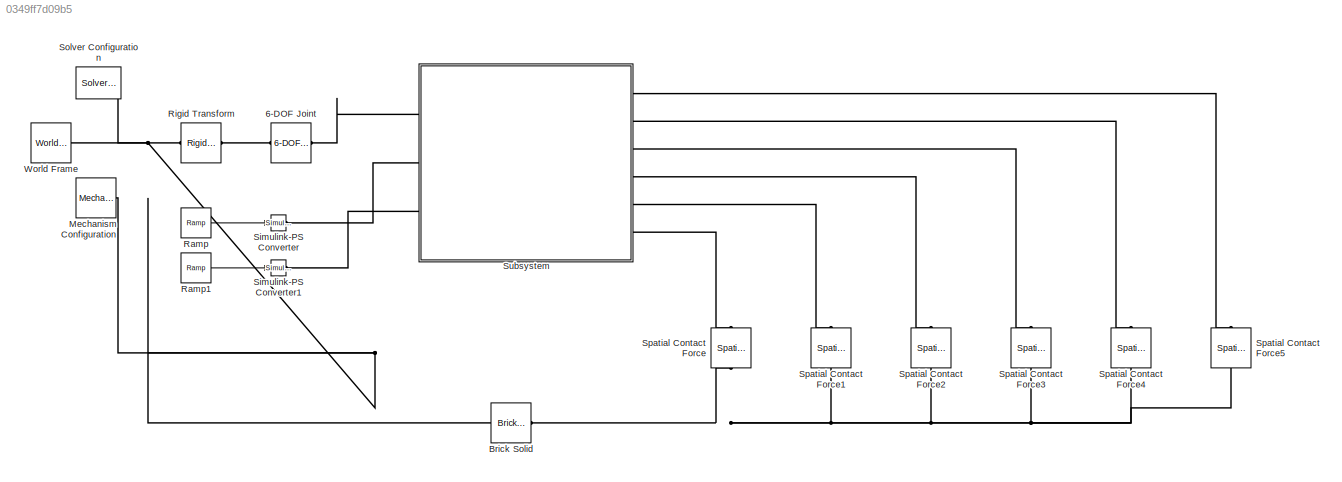
MODEL slx_0349ff7d09b5
KIND model
CONFIG AbsTol = auto
CONFIG EnableMultiTasking = off
CONFIG FixedStep = 0.001
CONFIG MaxStep = auto
CONFIG MinStep = auto
CONFIG RelTol = 1e-3
CONFIG SampleTimeConstraint = Unconstrained
CONFIG SolverName = FixedStepAuto
CONFIG StartTime = 0.0
CONFIG StopTime = 10
BLOCK [Reference] 6-DOF Joint  REF=sm_lib/Joints/6-DOF Joint
  Ports = [0, 0, 0, 0, 0, 1, 1]
  SourceBlock = sm_lib/Joints/6-DOF Joint
  SourceProductBaseCode = MS
  SourceType = 6-DOF Joint
BLOCK [Reference] Brick Solid  REF=sm_lib/Body Elements/Brick Solid
  NameLocation = top
  Ports = [0, 0, 0, 0, 0, 1, 1]
  SourceBlock = sm_lib/Body Elements/Brick Solid
  SourceProductBaseCode = MS
  SourceType = Brick Solid
BLOCK [Reference] Mechanism Configuration  REF=sm_lib/Utilities/Mechanism
Configuration
  Ports = [0, 0, 0, 0, 0, 0, 1]
  SourceBlock = sm_lib/Utilities/Mechanism\nConfiguration
  SourceProductBaseCode = MS
  SourceType = Mechanism\nConfiguration
BLOCK [Reference] Ramp  REF=simulink/Sources/Ramp
  Ports = [0, 1]
  SourceBlock = simulink/Sources/Ramp
  SourceProductBaseCode = SL
  SourceType = Ramp
BLOCK [Reference] Ramp1  REF=simulink/Sources/Ramp
  Ports = [0, 1]
  SourceBlock = simulink/Sources/Ramp
  SourceProductBaseCode = SL
  SourceType = Ramp
BLOCK [Reference] Rigid Transform  REF=sm_lib/Frames and
Transforms/Rigid
Transform
  NameLocation = top
  Ports = [0, 0, 0, 0, 0, 1, 1]
  SourceBlock = sm_lib/Frames and\nTransforms/Rigid\nTransform
  SourceProductBaseCode = MS
  SourceType = Rigid\nTransform
BLOCK [Reference] Simulink-PS Converter  REF=nesl_utility/Simulink-PS
Converter
  Ports = [1, 0, 0, 0, 0, 0, 1]
  SourceBlock = nesl_utility/Simulink-PS\nConverter
  SourceProductBaseCode = SS
  SourceType = Simulink-PS\nConverter
BLOCK [Reference] Simulink-PS Converter1  REF=nesl_utility/Simulink-PS
Converter
  Ports = [1, 0, 0, 0, 0, 0, 1]
  SourceBlock = nesl_utility/Simulink-PS\nConverter
  SourceProductBaseCode = SS
  SourceType = Simulink-PS\nConverter
BLOCK [Reference] Solver Configuration  REF=nesl_utility/Solver
Configuration
  Ports = [0, 0, 0, 0, 0, 0, 1]
  SourceBlock = nesl_utility/Solver\nConfiguration
  SourceProductBaseCode = SS
  SourceType = Solver\nConfiguration
BLOCK [Reference] Spatial Contact Force  REF=sm_lib/Forces and
Torques/Spatial
Contact Force
  NameLocation = right
  Ports = [0, 0, 0, 0, 0, 1, 1]
  SourceBlock = sm_lib/Forces and\nTorques/Spatial\nContact Force
  SourceProductBaseCode = MS
  SourceType = Spatial\nContact Force
BLOCK [Reference] Spatial Contact Force1  REF=sm_lib/Forces and
Torques/Spatial
Contact Force
  NameLocation = right
  Ports = [0, 0, 0, 0, 0, 1, 1]
  SourceBlock = sm_lib/Forces and\nTorques/Spatial\nContact Force
  SourceProductBaseCode = MS
  SourceType = Spatial\nContact Force
BLOCK [Reference] Spatial Contact Force2  REF=sm_lib/Forces and
Torques/Spatial
Contact Force
  NameLocation = right
  Ports = [0, 0, 0, 0, 0, 1, 1]
  SourceBlock = sm_lib/Forces and\nTorques/Spatial\nContact Force
  SourceProductBaseCode = MS
  SourceType = Spatial\nContact Force
BLOCK [Reference] Spatial Contact Force3  REF=sm_lib/Forces and
Torques/Spatial
Contact Force
  NameLocation = right
  Ports = [0, 0, 0, 0, 0, 1, 1]
  SourceBlock = sm_lib/Forces and\nTorques/Spatial\nContact Force
  SourceProductBaseCode = MS
  SourceType = Spatial\nContact Force
BLOCK [Reference] Spatial Contact Force4  REF=sm_lib/Forces and
Torques/Spatial
Contact Force
  NameLocation = right
  Ports = [0, 0, 0, 0, 0, 1, 1]
  SourceBlock = sm_lib/Forces and\nTorques/Spatial\nContact Force
  SourceProductBaseCode = MS
  SourceType = Spatial\nContact Force
BLOCK [Reference] Spatial Contact Force5  REF=sm_lib/Forces and
Torques/Spatial
Contact Force
  NameLocation = right
  Ports = [0, 0, 0, 0, 0, 1, 1]
  SourceBlock = sm_lib/Forces and\nTorques/Spatial\nContact Force
  SourceProductBaseCode = MS
  SourceType = Spatial\nContact Force
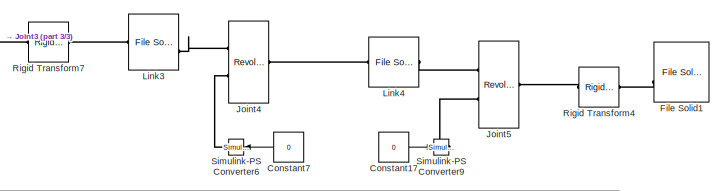
[diagram: Subsystem - part 1/3, top right region]
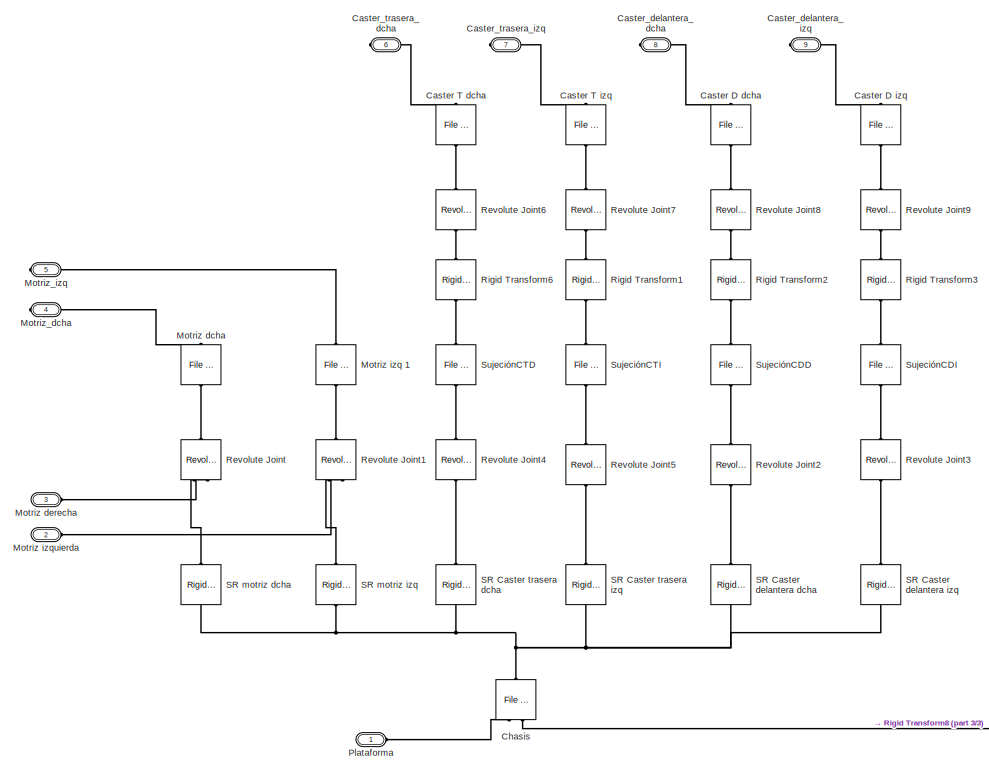
[diagram: Subsystem - part 2/3, left side, full height]
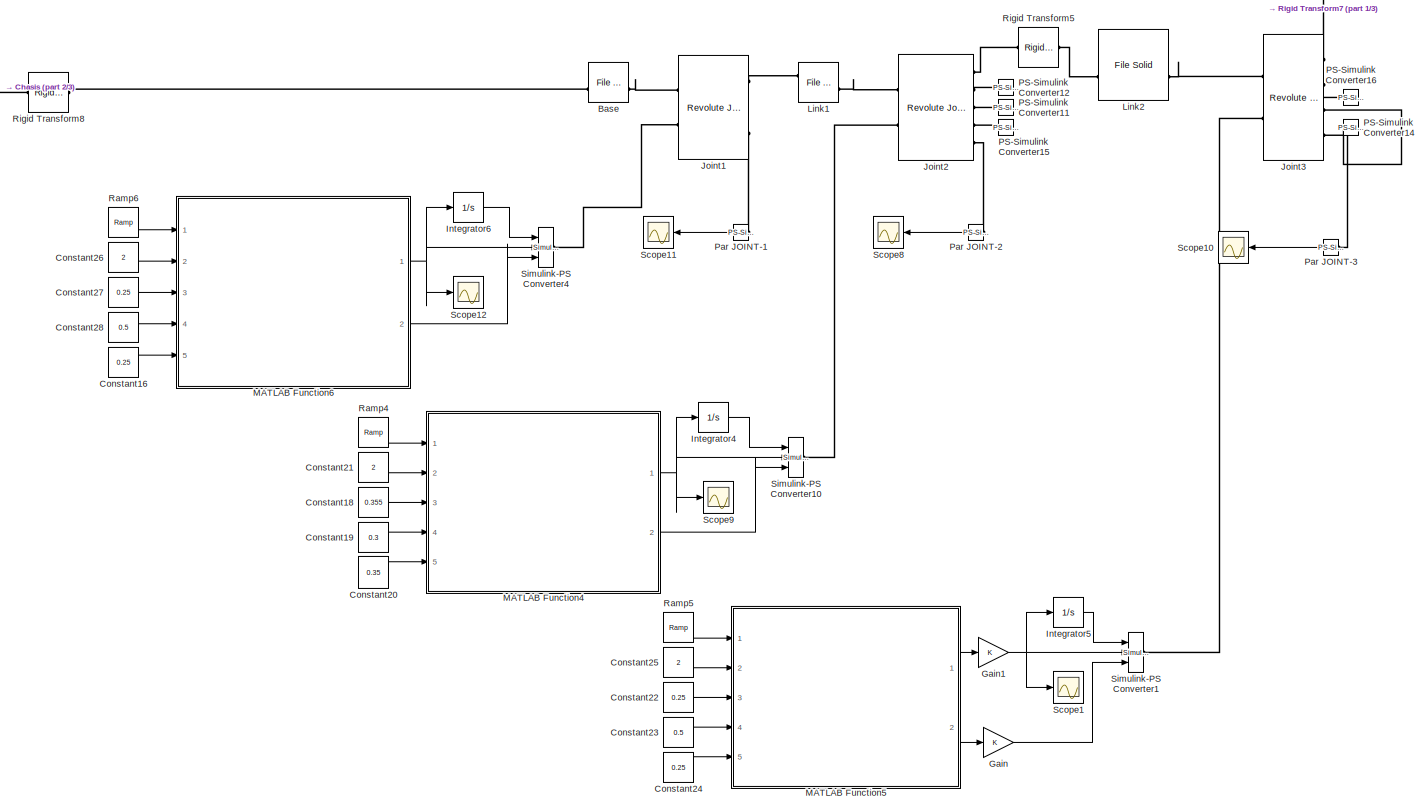
[diagram: Subsystem - part 3/3, right side, full height]
BLOCK [SubSystem] Subsystem
  Ports = [0, 0, 0, 0, 0, 3, 6]
  RequestExecContextInheritance = off
BLOCK [Reference] Subsystem/Base  REF=sm_lib/Body Elements/File Solid
  Ports = [0, 0, 0, 0, 0, 2, 2]
  SourceBlock = sm_lib/Body Elements/File Solid
  SourceProductBaseCode = MS
  SourceType = File Solid
BLOCK [Reference] Subsystem/Caster D dcha  REF=sm_lib/Body Elements/File Solid
  NameLocation = right
  Ports = [0, 0, 0, 0, 0, 1, 1]
  SourceBlock = sm_lib/Body Elements/File Solid
  SourceProductBaseCode = MS
  SourceType = File Solid
BLOCK [Reference] Subsystem/Caster D izq  REF=sm_lib/Body Elements/File Solid
  NameLocation = right
  Ports = [0, 0, 0, 0, 0, 1, 1]
  SourceBlock = sm_lib/Body Elements/File Solid
  SourceProductBaseCode = MS
  SourceType = File Solid
BLOCK [Reference] Subsystem/Caster T dcha  REF=sm_lib/Body Elements/File Solid
  NameLocation = right
  Ports = [0, 0, 0, 0, 0, 1, 1]
  SourceBlock = sm_lib/Body Elements/File Solid
  SourceProductBaseCode = MS
  SourceType = File Solid
BLOCK [Reference] Subsystem/Caster T izq   REF=sm_lib/Body Elements/File Solid
  NameLocation = right
  Ports = [0, 0, 0, 0, 0, 1, 1]
  SourceBlock = sm_lib/Body Elements/File Solid
  SourceProductBaseCode = MS
  SourceType = File Solid
BLOCK [PMIOPort] Subsystem/Caster_delantera_dcha
  Port = 8
  Side = Right
BLOCK [PMIOPort] Subsystem/Caster_delantera_izq
  Port = 9
  Side = Right
BLOCK [PMIOPort] Subsystem/Caster_trasera_dcha
  Port = 6
  Side = Right
BLOCK [PMIOPort] Subsystem/Caster_trasera_izq
  Port = 7
  Side = Right
BLOCK [Reference] Subsystem/Chasis  REF=sm_lib/Body Elements/File Solid
  NameLocation = right
  Ports = [0, 0, 0, 0, 0, 2, 1]
  SourceBlock = sm_lib/Body Elements/File Solid
  SourceProductBaseCode = MS
  SourceType = File Solid
BLOCK [Constant] Subsystem/Constant16
  Commented = on
  Value = 0.25
BLOCK [Constant] Subsystem/Constant17
  Value = 0
BLOCK [Constant] Subsystem/Constant18
  Commented = on
  Value = 0.355
BLOCK [Constant] Subsystem/Constant19
  Commented = on
  Value = 0.3
BLOCK [Constant] Subsystem/Constant20
  Commented = on
  Value = 0.35
BLOCK [Constant] Subsystem/Constant21
  Commented = on
  Value = 2
BLOCK [Constant] Subsystem/Constant22
  Commented = on
  Value = 0.25
BLOCK [Constant] Subsystem/Constant23
  Commented = on
  Value = 0.5
BLOCK [Constant] Subsystem/Constant24
  Commented = on
  Value = 0.25
BLOCK [Constant] Subsystem/Constant25
  Commented = on
  Value = 2
BLOCK [Constant] Subsystem/Constant26
  Commented = on
  Value = 2
BLOCK [Constant] Subsystem/Constant27
  Commented = on
  Value = 0.25
BLOCK [Constant] Subsystem/Constant28
  Commented = on
  Value = 0.5
BLOCK [Constant] Subsystem/Constant7
  Value = 0
BLOCK [Reference] Subsystem/File Solid1  REF=sm_lib/Body Elements/File Solid
  Ports = [0, 0, 0, 0, 0, 2, 1]
  SourceBlock = sm_lib/Body Elements/File Solid
  SourceProductBaseCode = MS
  SourceType = File Solid
BLOCK [Gain] Subsystem/Gain
  Commented = on
BLOCK [Gain] Subsystem/Gain1
  Commented = on
BLOCK [Integrator] Subsystem/Integrator4
  Commented = on
  Ports = [1, 1]
BLOCK [Integrator] Subsystem/Integrator5
  Commented = on
  Ports = [1, 1]
BLOCK [Integrator] Subsystem/Integrator6
  Commented = on
  Ports = [1, 1]
BLOCK [Reference] Subsystem/Joint1  REF=sm_lib/Joints/Revolute Joint
  Ports = [0, 0, 0, 0, 0, 2, 3]
  SourceBlock = sm_lib/Joints/Revolute Joint
  SourceProductBaseCode = MS
  SourceType = Revolute Joint
BLOCK [Reference] Subsystem/Joint2  REF=sm_lib/Joints/Revolute Joint
  Ports = [0, 0, 0, 0, 0, 2, 5]
  SourceBlock = sm_lib/Joints/Revolute Joint
  SourceProductBaseCode = MS
  SourceType = Revolute Joint
BLOCK [Reference] Subsystem/Joint3  REF=sm_lib/Joints/Revolute Joint
  Ports = [0, 0, 0, 0, 0, 2, 4]
  SourceBlock = sm_lib/Joints/Revolute Joint
  SourceProductBaseCode = MS
  SourceType = Revolute Joint
BLOCK [Reference] Subsystem/Joint4  REF=sm_lib/Joints/Revolute Joint
  Ports = [0, 0, 0, 0, 0, 2, 1]
  SourceBlock = sm_lib/Joints/Revolute Joint
  SourceProductBaseCode = MS
  SourceType = Revolute Joint
BLOCK [Reference] Subsystem/Joint5  REF=sm_lib/Joints/Revolute Joint
  Ports = [0, 0, 0, 0, 0, 2, 1]
  SourceBlock = sm_lib/Joints/Revolute Joint
  SourceProductBaseCode = MS
  SourceType = Revolute Joint
BLOCK [Reference] Subsystem/Link1  REF=sm_lib/Body Elements/File Solid
  Ports = [0, 0, 0, 0, 0, 2, 2]
  SourceBlock = sm_lib/Body Elements/File Solid
  SourceProductBaseCode = MS
  SourceType = File Solid
BLOCK [Reference] Subsystem/Link2  REF=sm_lib/Body Elements/File Solid
  NameLocation = top
  Ports = [0, 0, 0, 0, 0, 2, 2]
  SourceBlock = sm_lib/Body Elements/File Solid
  SourceProductBaseCode = MS
  SourceType = File Solid
BLOCK [Reference] Subsystem/Link3  REF=sm_lib/Body Elements/File Solid
  NameLocation = top
  Ports = [0, 0, 0, 0, 0, 2, 1]
  SourceBlock = sm_lib/Body Elements/File Solid
  SourceProductBaseCode = MS
  SourceType = File Solid
BLOCK [Reference] Subsystem/Link4  REF=sm_lib/Body Elements/File Solid
  NameLocation = top
  Ports = [0, 0, 0, 0, 0, 1, 1]
  SourceBlock = sm_lib/Body Elements/File Solid
  SourceProductBaseCode = MS
  SourceType = File Solid
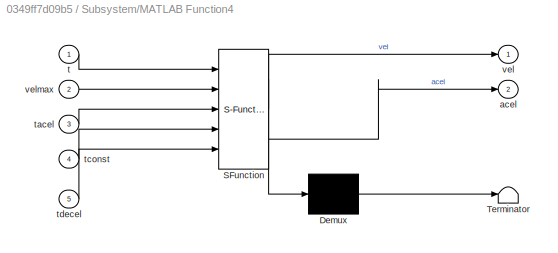
BLOCK [SubSystem] Subsystem/MATLAB Function4
  Commented = on
  ErrorFcn = Stateflow.Translate.translate
  PermitHierarchicalResolution = ExplicitOnly
  Ports = [5, 2]
  RequestExecContextInheritance = off
  SFBlockType = MATLAB Function
  TreatAsAtomicUnit = on
BLOCK [Demux] Subsystem/MATLAB Function4/ Demux 
  Outputs = 1
  Ports = [1, 1]
BLOCK [S-Function] Subsystem/MATLAB Function4/ SFunction 
  EnableBusSupport = on
  FunctionName = sf_sfun
  PortCounts = [5 3]
  Ports = [5, 3]
  SFcnIsStateOwnerBlock = off
  SFunctionDeploymentMode = off
  Tag = Stateflow S-Function 4
BLOCK [Terminator] Subsystem/MATLAB Function4/ Terminator 
BLOCK [Outport] Subsystem/MATLAB Function4/acel
  Port = 2
BLOCK [Inport] Subsystem/MATLAB Function4/t
BLOCK [Inport] Subsystem/MATLAB Function4/tacel
  Port = 3
BLOCK [Inport] Subsystem/MATLAB Function4/tconst
  Port = 4
BLOCK [Inport] Subsystem/MATLAB Function4/tdecel
  Port = 5
BLOCK [Outport] Subsystem/MATLAB Function4/vel
BLOCK [Inport] Subsystem/MATLAB Function4/velmax
  Port = 2
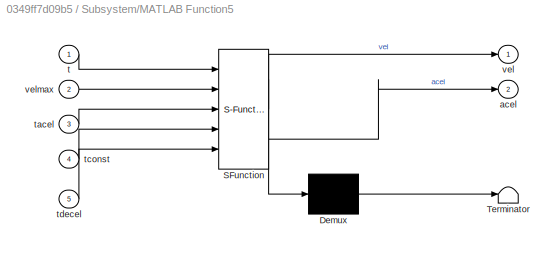
BLOCK [SubSystem] Subsystem/MATLAB Function5
  Commented = on
  ErrorFcn = Stateflow.Translate.translate
  PermitHierarchicalResolution = ExplicitOnly
  Ports = [5, 2]
  RequestExecContextInheritance = off
  SFBlockType = MATLAB Function
  TreatAsAtomicUnit = on
BLOCK [Demux] Subsystem/MATLAB Function5/ Demux 
  Outputs = 1
  Ports = [1, 1]
BLOCK [S-Function] Subsystem/MATLAB Function5/ SFunction 
  EnableBusSupport = on
  FunctionName = sf_sfun
  PortCounts = [5 3]
  Ports = [5, 3]
  SFcnIsStateOwnerBlock = off
  SFunctionDeploymentMode = off
  Tag = Stateflow S-Function 5
BLOCK [Terminator] Subsystem/MATLAB Function5/ Terminator 
BLOCK [Outport] Subsystem/MATLAB Function5/acel
  Port = 2
BLOCK [Inport] Subsystem/MATLAB Function5/t
BLOCK [Inport] Subsystem/MATLAB Function5/tacel
  Port = 3
BLOCK [Inport] Subsystem/MATLAB Function5/tconst
  Port = 4
BLOCK [Inport] Subsystem/MATLAB Function5/tdecel
  Port = 5
BLOCK [Outport] Subsystem/MATLAB Function5/vel
BLOCK [Inport] Subsystem/MATLAB Function5/velmax
  Port = 2
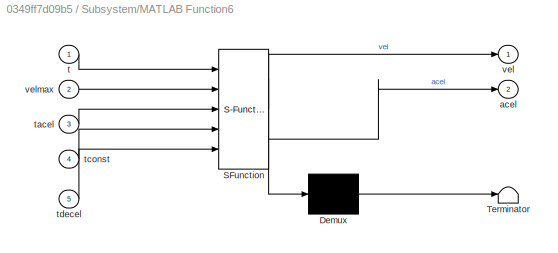
BLOCK [SubSystem] Subsystem/MATLAB Function6
  Commented = on
  ErrorFcn = Stateflow.Translate.translate
  PermitHierarchicalResolution = ExplicitOnly
  Ports = [5, 2]
  RequestExecContextInheritance = off
  SFBlockType = MATLAB Function
  TreatAsAtomicUnit = on
BLOCK [Demux] Subsystem/MATLAB Function6/ Demux 
  Outputs = 1
  Ports = [1, 1]
BLOCK [S-Function] Subsystem/MATLAB Function6/ SFunction 
  EnableBusSupport = on
  FunctionName = sf_sfun
  PortCounts = [5 3]
  Ports = [5, 3]
  SFcnIsStateOwnerBlock = off
  SFunctionDeploymentMode = off
  Tag = Stateflow S-Function 6
BLOCK [Terminator] Subsystem/MATLAB Function6/ Terminator 
BLOCK [Outport] Subsystem/MATLAB Function6/acel
  Port = 2
BLOCK [Inport] Subsystem/MATLAB Function6/t
BLOCK [Inport] Subsystem/MATLAB Function6/tacel
  Port = 3
BLOCK [Inport] Subsystem/MATLAB Function6/tconst
  Port = 4
BLOCK [Inport] Subsystem/MATLAB Function6/tdecel
  Port = 5
BLOCK [Outport] Subsystem/MATLAB Function6/vel
BLOCK [Inport] Subsystem/MATLAB Function6/velmax
  Port = 2
BLOCK [Reference] Subsystem/Motriz dcha   REF=sm_lib/Body Elements/File Solid
  NameLocation = left
  Ports = [0, 0, 0, 0, 0, 1, 1]
  SourceBlock = sm_lib/Body Elements/File Solid
  SourceProductBaseCode = MS
  SourceType = File Solid
BLOCK [PMIOPort] Subsystem/Motriz derecha
  Port = 3
  Side = Left
BLOCK [Reference] Subsystem/Motriz izq 1  REF=sm_lib/Body Elements/File Solid
  NameLocation = left
  Ports = [0, 0, 0, 0, 0, 1, 1]
  SourceBlock = sm_lib/Body Elements/File Solid
  SourceProductBaseCode = MS
  SourceType = File Solid
BLOCK [PMIOPort] Subsystem/Motriz izquierda
  Port = 2
  Side = Left
BLOCK [PMIOPort] Subsystem/Motriz_dcha
  Port = 4
  Side = Right
BLOCK [PMIOPort] Subsystem/Motriz_izq
  Port = 5
  Side = Right
BLOCK [Reference] Subsystem/PS-Simulink Converter11  REF=nesl_utility/PS-Simulink
Converter
  Ports = [0, 1, 0, 0, 0, 1]
  SourceBlock = nesl_utility/PS-Simulink\nConverter
  SourceProductBaseCode = SS
  SourceType = PS-Simulink\nConverter
BLOCK [Reference] Subsystem/PS-Simulink Converter12  REF=nesl_utility/PS-Simulink
Converter
  Ports = [0, 1, 0, 0, 0, 1]
  SourceBlock = nesl_utility/PS-Simulink\nConverter
  SourceProductBaseCode = SS
  SourceType = PS-Simulink\nConverter
BLOCK [Reference] Subsystem/PS-Simulink Converter14  REF=nesl_utility/PS-Simulink
Converter
  Ports = [0, 1, 0, 0, 0, 1]
  SourceBlock = nesl_utility/PS-Simulink\nConverter
  SourceProductBaseCode = SS
  SourceType = PS-Simulink\nConverter
BLOCK [Reference] Subsystem/PS-Simulink Converter15  REF=nesl_utility/PS-Simulink
Converter
  Ports = [0, 1, 0, 0, 0, 1]
  SourceBlock = nesl_utility/PS-Simulink\nConverter
  SourceProductBaseCode = SS
  SourceType = PS-Simulink\nConverter
BLOCK [Reference] Subsystem/PS-Simulink Converter16  REF=nesl_utility/PS-Simulink
Converter
  NameLocation = left
  Ports = [0, 1, 0, 0, 0, 1]
  SourceBlock = nesl_utility/PS-Simulink\nConverter
  SourceProductBaseCode = SS
  SourceType = PS-Simulink\nConverter
BLOCK [Reference] Subsystem/Par JOINT-1  REF=nesl_utility/PS-Simulink
Converter
  Commented = on
  Ports = [0, 1, 0, 0, 0, 1]
  SourceBlock = nesl_utility/PS-Simulink\nConverter
  SourceProductBaseCode = SS
  SourceType = PS-Simulink\nConverter
BLOCK [Reference] Subsystem/Par JOINT-2  REF=nesl_utility/PS-Simulink
Converter
  Commented = on
  Ports = [0, 1, 0, 0, 0, 1]
  SourceBlock = nesl_utility/PS-Simulink\nConverter
  SourceProductBaseCode = SS
  SourceType = PS-Simulink\nConverter
BLOCK [Reference] Subsystem/Par JOINT-3  REF=nesl_utility/PS-Simulink
Converter
  Commented = on
  Ports = [0, 1, 0, 0, 0, 1]
  SourceBlock = nesl_utility/PS-Simulink\nConverter
  SourceProductBaseCode = SS
  SourceType = PS-Simulink\nConverter
BLOCK [PMIOPort] Subsystem/Plataforma
  Side = Left
BLOCK [Reference] Subsystem/Ramp4  REF=simulink/Sources/Ramp
  Commented = on
  Ports = [0, 1]
  SourceBlock = simulink/Sources/Ramp
  SourceProductBaseCode = SL
  SourceType = Ramp
BLOCK [Reference] Subsystem/Ramp5  REF=simulink/Sources/Ramp
  Commented = on
  Ports = [0, 1]
  SourceBlock = simulink/Sources/Ramp
  SourceProductBaseCode = SL
  SourceType = Ramp
BLOCK [Reference] Subsystem/Ramp6  REF=simulink/Sources/Ramp
  Commented = on
  Ports = [0, 1]
  SourceBlock = simulink/Sources/Ramp
  SourceProductBaseCode = SL
  SourceType = Ramp
BLOCK [Reference] Subsystem/Revolute Joint  REF=sm_lib/Joints/Revolute Joint
  NameLocation = right
  Ports = [0, 0, 0, 0, 0, 2, 1]
  SourceBlock = sm_lib/Joints/Revolute Joint
  SourceProductBaseCode = MS
  SourceType = Revolute Joint
BLOCK [Reference] Subsystem/Revolute Joint1  REF=sm_lib/Joints/Revolute Joint
  NameLocation = right
  Ports = [0, 0, 0, 0, 0, 2, 1]
  SourceBlock = sm_lib/Joints/Revolute Joint
  SourceProductBaseCode = MS
  SourceType = Revolute Joint
BLOCK [Reference] Subsystem/Revolute Joint2  REF=sm_lib/Joints/Revolute Joint
  NameLocation = right
  Ports = [0, 0, 0, 0, 0, 1, 1]
  SourceBlock = sm_lib/Joints/Revolute Joint
  SourceProductBaseCode = MS
  SourceType = Revolute Joint
BLOCK [Reference] Subsystem/Revolute Joint3  REF=sm_lib/Joints/Revolute Joint
  NameLocation = right
  Ports = [0, 0, 0, 0, 0, 1, 1]
  SourceBlock = sm_lib/Joints/Revolute Joint
  SourceProductBaseCode = MS
  SourceType = Revolute Joint
BLOCK [Reference] Subsystem/Revolute Joint4  REF=sm_lib/Joints/Revolute Joint
  NameLocation = right
  Ports = [0, 0, 0, 0, 0, 1, 1]
  SourceBlock = sm_lib/Joints/Revolute Joint
  SourceProductBaseCode = MS
  SourceType = Revolute Joint
BLOCK [Reference] Subsystem/Revolute Joint5  REF=sm_lib/Joints/Revolute Joint
  NameLocation = right
  Ports = [0, 0, 0, 0, 0, 1, 1]
  SourceBlock = sm_lib/Joints/Revolute Joint
  SourceProductBaseCode = MS
  SourceType = Revolute Joint
BLOCK [Reference] Subsystem/Revolute Joint6  REF=sm_lib/Joints/Revolute Joint
  NameLocation = right
  Ports = [0, 0, 0, 0, 0, 1, 1]
  SourceBlock = sm_lib/Joints/Revolute Joint
  SourceProductBaseCode = MS
  SourceType = Revolute Joint
BLOCK [Reference] Subsystem/Revolute Joint7  REF=sm_lib/Joints/Revolute Joint
  NameLocation = right
  Ports = [0, 0, 0, 0, 0, 1, 1]
  SourceBlock = sm_lib/Joints/Revolute Joint
  SourceProductBaseCode = MS
  SourceType = Revolute Joint
BLOCK [Reference] Subsystem/Revolute Joint8  REF=sm_lib/Joints/Revolute Joint
  NameLocation = right
  Ports = [0, 0, 0, 0, 0, 1, 1]
  SourceBlock = sm_lib/Joints/Revolute Joint
  SourceProductBaseCode = MS
  SourceType = Revolute Joint
BLOCK [Reference] Subsystem/Revolute Joint9  REF=sm_lib/Joints/Revolute Joint
  NameLocation = right
  Ports = [0, 0, 0, 0, 0, 1, 1]
  SourceBlock = sm_lib/Joints/Revolute Joint
  SourceProductBaseCode = MS
  SourceType = Revolute Joint
BLOCK [Reference] Subsystem/Rigid Transform1  REF=sm_lib/Frames and
Transforms/Rigid
Transform
  NameLocation = right
  Ports = [0, 0, 0, 0, 0, 1, 1]
  SourceBlock = sm_lib/Frames and\nTransforms/Rigid\nTransform
  SourceProductBaseCode = MS
  SourceType = Rigid\nTransform
BLOCK [Reference] Subsystem/Rigid Transform2  REF=sm_lib/Frames and
Transforms/Rigid
Transform
  NameLocation = right
  Ports = [0, 0, 0, 0, 0, 1, 1]
  SourceBlock = sm_lib/Frames and\nTransforms/Rigid\nTransform
  SourceProductBaseCode = MS
  SourceType = Rigid\nTransform
BLOCK [Reference] Subsystem/Rigid Transform3  REF=sm_lib/Frames and
Transforms/Rigid
Transform
  NameLocation = right
  Ports = [0, 0, 0, 0, 0, 1, 1]
  SourceBlock = sm_lib/Frames and\nTransforms/Rigid\nTransform
  SourceProductBaseCode = MS
  SourceType = Rigid\nTransform
BLOCK [Reference] Subsystem/Rigid Transform4  REF=sm_lib/Frames and
Transforms/Rigid
Transform
  Ports = [0, 0, 0, 0, 0, 1, 1]
  SourceBlock = sm_lib/Frames and\nTransforms/Rigid\nTransform
  SourceProductBaseCode = MS
  SourceType = Rigid\nTransform
BLOCK [Reference] Subsystem/Rigid Transform5  REF=sm_lib/Frames and
Transforms/Rigid
Transform
  Ports = [0, 0, 0, 0, 0, 1, 1]
  SourceBlock = sm_lib/Frames and\nTransforms/Rigid\nTransform
  SourceProductBaseCode = MS
  SourceType = Rigid\nTransform
BLOCK [Reference] Subsystem/Rigid Transform6  REF=sm_lib/Frames and
Transforms/Rigid
Transform
  NameLocation = right
  Ports = [0, 0, 0, 0, 0, 1, 1]
  SourceBlock = sm_lib/Frames and\nTransforms/Rigid\nTransform
  SourceProductBaseCode = MS
  SourceType = Rigid\nTransform
BLOCK [Reference] Subsystem/Rigid Transform7  REF=sm_lib/Frames and
Transforms/Rigid
Transform
  Ports = [0, 0, 0, 0, 0, 1, 1]
  SourceBlock = sm_lib/Frames and\nTransforms/Rigid\nTransform
  SourceProductBaseCode = MS
  SourceType = Rigid\nTransform
BLOCK [Reference] Subsystem/Rigid Transform8  REF=sm_lib/Frames and
Transforms/Rigid
Transform
  Ports = [0, 0, 0, 0, 0, 1, 1]
  SourceBlock = sm_lib/Frames and\nTransforms/Rigid\nTransform
  SourceProductBaseCode = MS
  SourceType = Rigid\nTransform
BLOCK [Reference] Subsystem/SR Caster delantera dcha  REF=sm_lib/Frames and
Transforms/Rigid
Transform
  NameLocation = right
  Ports = [0, 0, 0, 0, 0, 1, 1]
  SourceBlock = sm_lib/Frames and\nTransforms/Rigid\nTransform
  SourceProductBaseCode = MS
  SourceType = Rigid\nTransform
BLOCK [Reference] Subsystem/SR Caster delantera izq  REF=sm_lib/Frames and
Transforms/Rigid
Transform
  NameLocation = right
  Ports = [0, 0, 0, 0, 0, 1, 1]
  SourceBlock = sm_lib/Frames and\nTransforms/Rigid\nTransform
  SourceProductBaseCode = MS
  SourceType = Rigid\nTransform
BLOCK [Reference] Subsystem/SR Caster trasera dcha  REF=sm_lib/Frames and
Transforms/Rigid
Transform
  NameLocation = right
  Ports = [0, 0, 0, 0, 0, 1, 1]
  SourceBlock = sm_lib/Frames and\nTransforms/Rigid\nTransform
  SourceProductBaseCode = MS
  SourceType = Rigid\nTransform
BLOCK [Reference] Subsystem/SR Caster trasera izq  REF=sm_lib/Frames and
Transforms/Rigid
Transform
  NameLocation = right
  Ports = [0, 0, 0, 0, 0, 1, 1]
  SourceBlock = sm_lib/Frames and\nTransforms/Rigid\nTransform
  SourceProductBaseCode = MS
  SourceType = Rigid\nTransform
BLOCK [Reference] Subsystem/SR motriz dcha  REF=sm_lib/Frames and
Transforms/Rigid
Transform
  NameLocation = right
  Ports = [0, 0, 0, 0, 0, 1, 1]
  SourceBlock = sm_lib/Frames and\nTransforms/Rigid\nTransform
  SourceProductBaseCode = MS
  SourceType = Rigid\nTransform
BLOCK [Reference] Subsystem/SR motriz izq  REF=sm_lib/Frames and
Transforms/Rigid
Transform
  NameLocation = right
  Ports = [0, 0, 0, 0, 0, 1, 1]
  SourceBlock = sm_lib/Frames and\nTransforms/Rigid\nTransform
  SourceProductBaseCode = MS
  SourceType = Rigid\nTransform
BLOCK [Scope] Subsystem/Scope1
  Commented = on
  Floating = off
  NumInputPorts = 1
  Ports = [1]
  ScopeSpecificationString = Simulink.scopes.TimeScopeBlockCfg('CurrentConfiguration', extmgr.ConfigurationSet(extmgr.Configuration('Core','General UI',true),extmgr.Configuration('Core','Source UI',true),extmgr.Configuration('Sources','WiredSimulink',true,'DataLoggingVariableName','ScopeData1'),extmgr.Configuration('Visuals','Time Domain',true,'SerializedDisplays',{struct('MinYLimReal','-1.125','MaxYLimReal','0.125','YLabelRe...<+1805ch>
BLOCK [Scope] Subsystem/Scope10
  Commented = on
  Floating = off
  NumInputPorts = 1
  Ports = [1]
  ScopeSpecificationString = Simulink.scopes.TimeScopeBlockCfg('CurrentConfiguration', extmgr.ConfigurationSet(extmgr.Configuration('Core','General UI',true,'FigureColor',[1 1 1]),extmgr.Configuration('Core','Source UI',true),extmgr.Configuration('Sources','WiredSimulink',true,'DataLoggingVariableName','ScopeData2'),extmgr.Configuration('Visuals','Time Domain',true,'SerializedDisplays',{struct('MinYLimReal','-146.68256','MaxY...<+1842ch>
BLOCK [Scope] Subsystem/Scope11
  Commented = on
  Floating = off
  NumInputPorts = 1
  Ports = [1]
  ScopeSpecificationString = Simulink.scopes.TimeScopeBlockCfg('CurrentConfiguration', extmgr.ConfigurationSet(extmgr.Configuration('Core','General UI',true,'FigureColor',[1 1 1]),extmgr.Configuration('Core','Source UI',true),extmgr.Configuration('Sources','WiredSimulink',true,'DataLoggingVariableName','ScopeData3'),extmgr.Configuration('Visuals','Time Domain',true,'SerializedDisplays',{struct('MinYLimReal','-279.29048','MaxY...<+1842ch>
BLOCK [Scope] Subsystem/Scope12
  Commented = on
  Floating = off
  NumInputPorts = 1
  Ports = [1]
  ScopeSpecificationString = Simulink.scopes.TimeScopeBlockCfg('CurrentConfiguration', extmgr.ConfigurationSet(extmgr.Configuration('Core','General UI',true,'FigureColor',[1 1 1]),extmgr.Configuration('Core','Source UI',true),extmgr.Configuration('Sources','WiredSimulink',true,'DataLoggingVariableName','ScopeData4'),extmgr.Configuration('Visuals','Time Domain',true,'SerializedDisplays',{struct('MinYLimReal','-0.25','MaxYLimRe...<+1831ch>
BLOCK [Scope] Subsystem/Scope8
  Commented = on
  Floating = off
  NumInputPorts = 1
  Ports = [1]
  ScopeSpecificationString = Simulink.scopes.TimeScopeBlockCfg('CurrentConfiguration', extmgr.ConfigurationSet(extmgr.Configuration('Core','General UI',true,'FigureColor',[1 1 1]),extmgr.Configuration('Core','Source UI',true),extmgr.Configuration('Sources','WiredSimulink',true,'DataLoggingVariableName','ScopeData5'),extmgr.Configuration('Visuals','Time Domain',true,'SerializedDisplays',{struct('MinYLimReal','-3.81687','MaxYLi...<+1836ch>
BLOCK [Scope] Subsystem/Scope9
  Commented = on
  Floating = off
  NumInputPorts = 1
  Ports = [1]
  ScopeSpecificationString = Simulink.scopes.TimeScopeBlockCfg('CurrentConfiguration', extmgr.ConfigurationSet(extmgr.Configuration('Core','General UI',true),extmgr.Configuration('Core','Source UI',true),extmgr.Configuration('Sources','WiredSimulink',true),extmgr.Configuration('Visuals','Time Domain',true,'SerializedDisplays',{struct('MinYLimReal','-0.125','MaxYLimReal','1.125','YLabelReal','','MinYLimMag','0.00000','MaxYLimM...<+1781ch>
BLOCK [Reference] Subsystem/Simulink-PS Converter1  REF=nesl_utility/Simulink-PS
Converter
  Commented = on
  Ports = [3, 0, 0, 0, 0, 0, 1]
  SourceBlock = nesl_utility/Simulink-PS\nConverter
  SourceProductBaseCode = SS
  SourceType = Simulink-PS\nConverter
BLOCK [Reference] Subsystem/Simulink-PS Converter10  REF=nesl_utility/Simulink-PS
Converter
  Commented = on
  Ports = [3, 0, 0, 0, 0, 0, 1]
  SourceBlock = nesl_utility/Simulink-PS\nConverter
  SourceProductBaseCode = SS
  SourceType = Simulink-PS\nConverter
BLOCK [Reference] Subsystem/Simulink-PS Converter4  REF=nesl_utility/Simulink-PS
Converter
  Commented = on
  Ports = [3, 0, 0, 0, 0, 0, 1]
  SourceBlock = nesl_utility/Simulink-PS\nConverter
  SourceProductBaseCode = SS
  SourceType = Simulink-PS\nConverter
BLOCK [Reference] Subsystem/Simulink-PS Converter6  REF=nesl_utility/Simulink-PS
Converter
  Ports = [1, 0, 0, 0, 0, 0, 1]
  SourceBlock = nesl_utility/Simulink-PS\nConverter
  SourceProductBaseCode = SS
  SourceType = Simulink-PS\nConverter
BLOCK [Reference] Subsystem/Simulink-PS Converter9  REF=nesl_utility/Simulink-PS
Converter
  Ports = [1, 0, 0, 0, 0, 0, 1]
  SourceBlock = nesl_utility/Simulink-PS\nConverter
  SourceProductBaseCode = SS
  SourceType = Simulink-PS\nConverter
BLOCK [Reference] Subsystem/SujeciónCDD  REF=sm_lib/Body Elements/File Solid
  NameLocation = left
  Ports = [0, 0, 0, 0, 0, 1, 1]
  SourceBlock = sm_lib/Body Elements/File Solid
  SourceProductBaseCode = MS
  SourceType = File Solid
BLOCK [Reference] Subsystem/SujeciónCDI  REF=sm_lib/Body Elements/File Solid
  NameLocation = left
  Ports = [0, 0, 0, 0, 0, 1, 1]
  SourceBlock = sm_lib/Body Elements/File Solid
  SourceProductBaseCode = MS
  SourceType = File Solid
BLOCK [Reference] Subsystem/SujeciónCTD  REF=sm_lib/Body Elements/File Solid
  NameLocation = left
  Ports = [0, 0, 0, 0, 0, 1, 1]
  SourceBlock = sm_lib/Body Elements/File Solid
  SourceProductBaseCode = MS
  SourceType = File Solid
BLOCK [Reference] Subsystem/SujeciónCTI  REF=sm_lib/Body Elements/File Solid
  NameLocation = left
  Ports = [0, 0, 0, 0, 0, 1, 1]
  SourceBlock = sm_lib/Body Elements/File Solid
  SourceProductBaseCode = MS
  SourceType = File Solid
BLOCK [Reference] World Frame  REF=sm_lib/Frames and
Transforms/World Frame
  Ports = [0, 0, 0, 0, 0, 0, 1]
  SourceBlock = sm_lib/Frames and\nTransforms/World Frame
  SourceProductBaseCode = MS
  SourceType = World Frame
LINE Ramp1:1 -> Simulink-PS Converter1:1
LINE Ramp:1 -> Simulink-PS Converter:1
LINE Subsystem/Constant16:1 -> Subsystem/MATLAB Function6:5
LINE Subsystem/Constant17:1 -> Subsystem/Simulink-PS Converter9:1
LINE Subsystem/Constant18:1 -> Subsystem/MATLAB Function4:3
LINE Subsystem/Constant19:1 -> Subsystem/MATLAB Function4:4
LINE Subsystem/Constant20:1 -> Subsystem/MATLAB Function4:5
LINE Subsystem/Constant21:1 -> Subsystem/MATLAB Function4:2
LINE Subsystem/Constant22:1 -> Subsystem/MATLAB Function5:3
LINE Subsystem/Constant23:1 -> Subsystem/MATLAB Function5:4
LINE Subsystem/Constant24:1 -> Subsystem/MATLAB Function5:5
LINE Subsystem/Constant25:1 -> Subsystem/MATLAB Function5:2
LINE Subsystem/Constant26:1 -> Subsystem/MATLAB Function6:2
LINE Subsystem/Constant27:1 -> Subsystem/MATLAB Function6:3
LINE Subsystem/Constant28:1 -> Subsystem/MATLAB Function6:4
LINE Subsystem/Constant7:1 -> Subsystem/Simulink-PS Converter6:1
NET Subsystem/Gain1:1 -> Subsystem/Integrator5:1, Subsystem/Scope1:1, Subsystem/Simulink-PS Converter1:2
LINE Subsystem/Gain:1 -> Subsystem/Simulink-PS Converter1:3
LINE Subsystem/Integrator4:1 -> Subsystem/Simulink-PS Converter10:1
LINE Subsystem/Integrator5:1 -> Subsystem/Simulink-PS Converter1:1
LINE Subsystem/Integrator6:1 -> Subsystem/Simulink-PS Converter4:1
NET Subsystem/MATLAB Function4:1 -> Subsystem/Integrator4:1, Subsystem/Scope9:1, Subsystem/Simulink-PS Converter10:2
LINE Subsystem/MATLAB Function4:2 -> Subsystem/Simulink-PS Converter10:3
LINE Subsystem/MATLAB Function5:1 -> Subsystem/Gain1:1
LINE Subsystem/MATLAB Function5:2 -> Subsystem/Gain:1
NET Subsystem/MATLAB Function6:1 -> Subsystem/Integrator6:1, Subsystem/Scope12:1, Subsystem/Simulink-PS Converter4:2
LINE Subsystem/MATLAB Function6:2 -> Subsystem/Simulink-PS Converter4:3
LINE Subsystem/Par JOINT-1:1 -> Subsystem/Scope11:1
LINE Subsystem/Par JOINT-2:1 -> Subsystem/Scope8:1
LINE Subsystem/Par JOINT-3:1 -> Subsystem/Scope10:1
LINE Subsystem/Ramp4:1 -> Subsystem/MATLAB Function4:1
LINE Subsystem/Ramp5:1 -> Subsystem/MATLAB Function5:1
LINE Subsystem/Ramp6:1 -> Subsystem/MATLAB Function6:1
PLINE 6-DOF Joint:LConn1 -- Rigid Transform:RConn1
PLINE 6-DOF Joint:RConn1 -- Subsystem:LConn1
PNET net1: Brick Solid:LConn1 -- Spatial Contact Force1:LConn1 -- Spatial Contact Force2:LConn1 -- Spatial Contact Force3:LConn1 -- Spatial Contact Force4:LConn1 -- Spatial Contact Force5:LConn1 -- Spatial Contact Force:LConn1
PNET net2: Brick Solid:RConn1 -- Mechanism Configuration:RConn1 -- Rigid Transform:LConn1 -- Solver Configuration:RConn1 -- World Frame:RConn1
PLINE Simulink-PS Converter1:RConn1 -- Subsystem:LConn3
PLINE Simulink-PS Converter:RConn1 -- Subsystem:LConn2
PLINE Spatial Contact Force1:RConn1 -- Subsystem:RConn5
PLINE Spatial Contact Force2:RConn1 -- Subsystem:RConn4
PLINE Spatial Contact Force3:RConn1 -- Subsystem:RConn3
PLINE Spatial Contact Force4:RConn1 -- Subsystem:RConn2
PLINE Spatial Contact Force5:RConn1 -- Subsystem:RConn1
PLINE Spatial Contact Force:RConn1 -- Subsystem:RConn6
PLINE Subsystem/Base:LConn2 -- Subsystem/Joint1:LConn1
PLINE Subsystem/Base:RConn2 -- Subsystem/Rigid Transform8:RConn1
PLINE Subsystem/Caster D dcha:LConn1 -- Subsystem/Revolute Joint8:RConn1
PLINE Subsystem/Caster D dcha:RConn1 -- Subsystem/Caster_delantera_dcha:RConn1
PLINE Subsystem/Caster D izq:LConn1 -- Subsystem/Revolute Joint9:RConn1
PLINE Subsystem/Caster D izq:RConn1 -- Subsystem/Caster_delantera_izq:RConn1
PLINE Subsystem/Caster T dcha:LConn1 -- Subsystem/Revolute Joint6:RConn1
PLINE Subsystem/Caster T dcha:RConn1 -- Subsystem/Caster_trasera_dcha:RConn1
PLINE Subsystem/Caster T izq :LConn1 -- Subsystem/Revolute Joint7:RConn1
PLINE Subsystem/Caster T izq :RConn1 -- Subsystem/Caster_trasera_izq:RConn1
PLINE Subsystem/Chasis:LConn1 -- Subsystem/Plataforma:RConn1
PLINE Subsystem/Chasis:LConn2 -- Subsystem/Rigid Transform8:LConn1
PNET net3: Subsystem/Chasis:RConn1 -- Subsystem/SR Caster delantera dcha:LConn1 -- Subsystem/SR Caster delantera izq:LConn1 -- Subsystem/SR Caster trasera dcha:LConn1 -- Subsystem/SR Caster trasera izq:LConn1 -- Subsystem/SR motriz dcha:LConn1 -- Subsystem/SR motriz izq:LConn1
PLINE Subsystem/File Solid1:LConn2 -- Subsystem/Rigid Transform4:LConn1
PLINE Subsystem/Joint1:LConn2 -- Subsystem/Simulink-PS Converter4:RConn1
PLINE Subsystem/Joint1:RConn1 -- Subsystem/Link1:LConn1
PLINE Subsystem/Joint1:RConn3 -- Subsystem/Par JOINT-1:LConn1
PLINE Subsystem/Joint2:LConn1 -- Subsystem/Link1:RConn2
PLINE Subsystem/Joint2:LConn2 -- Subsystem/Simulink-PS Converter10:RConn1
PLINE Subsystem/Joint2:RConn1 -- Subsystem/Rigid Transform5:RConn1
PLINE Subsystem/Joint2:RConn2 -- Subsystem/PS-Simulink Converter12:LConn1
PLINE Subsystem/Joint2:RConn3 -- Subsystem/PS-Simulink Converter11:LConn1
PLINE Subsystem/Joint2:RConn4 -- Subsystem/PS-Simulink Converter15:LConn1
PLINE Subsystem/Joint2:RConn5 -- Subsystem/Par JOINT-2:LConn1
PLINE Subsystem/Joint3:LConn1 -- Subsystem/Link2:RConn2
PLINE Subsystem/Joint3:LConn2 -- Subsystem/Simulink-PS Converter1:RConn1
PLINE Subsystem/Joint3:RConn1 -- Subsystem/Rigid Transform7:RConn1
PLINE Subsystem/Joint3:RConn2 -- Subsystem/PS-Simulink Converter16:LConn1
PLINE Subsystem/Joint3:RConn3 -- Subsystem/PS-Simulink Converter14:LConn1
PLINE Subsystem/Joint3:RConn4 -- Subsystem/Par JOINT-3:LConn1
PLINE Subsystem/Joint4:LConn1 -- Subsystem/Link3:LConn2
PLINE Subsystem/Joint4:LConn2 -- Subsystem/Simulink-PS Converter6:RConn1
PLINE Subsystem/Joint4:RConn1 -- Subsystem/Link4:RConn1
PLINE Subsystem/Joint5:LConn1 -- Subsystem/Link4:LConn1
PLINE Subsystem/Joint5:LConn2 -- Subsystem/Simulink-PS Converter9:RConn1
PLINE Subsystem/Joint5:RConn1 -- Subsystem/Rigid Transform4:RConn1
PLINE Subsystem/Link2:LConn2 -- Subsystem/Rigid Transform5:LConn1
PLINE Subsystem/Link3:RConn1 -- Subsystem/Rigid Transform7:LConn1
PLINE Subsystem/Motriz dcha :LConn1 -- Subsystem/Motriz_dcha:RConn1
PLINE Subsystem/Motriz dcha :RConn1 -- Subsystem/Revolute Joint:RConn1
PLINE Subsystem/Motriz derecha:RConn1 -- Subsystem/Revolute Joint:LConn2
PLINE Subsystem/Motriz izq 1:LConn1 -- Subsystem/Motriz_izq:RConn1
PLINE Subsystem/Motriz izq 1:RConn1 -- Subsystem/Revolute Joint1:RConn1
PLINE Subsystem/Motriz izquierda:RConn1 -- Subsystem/Revolute Joint1:LConn2
PLINE Subsystem/Revolute Joint1:LConn1 -- Subsystem/SR motriz izq:RConn1
PLINE Subsystem/Revolute Joint2:LConn1 -- Subsystem/SR Caster delantera dcha:RConn1
PLINE Subsystem/Revolute Joint2:RConn1 -- Subsystem/SujeciónCDD:RConn1
PLINE Subsystem/Revolute Joint3:LConn1 -- Subsystem/SR Caster delantera izq:RConn1
PLINE Subsystem/Revolute Joint3:RConn1 -- Subsystem/SujeciónCDI:RConn1
PLINE Subsystem/Revolute Joint4:LConn1 -- Subsystem/SR Caster trasera dcha:RConn1
PLINE Subsystem/Revolute Joint4:RConn1 -- Subsystem/SujeciónCTD:RConn1
PLINE Subsystem/Revolute Joint5:LConn1 -- Subsystem/SR Caster trasera izq:RConn1
PLINE Subsystem/Revolute Joint5:RConn1 -- Subsystem/SujeciónCTI:RConn1
PLINE Subsystem/Revolute Joint6:LConn1 -- Subsystem/Rigid Transform6:RConn1
PLINE Subsystem/Revolute Joint7:LConn1 -- Subsystem/Rigid Transform1:RConn1
PLINE Subsystem/Revolute Joint8:LConn1 -- Subsystem/Rigid Transform2:RConn1
PLINE Subsystem/Revolute Joint9:LConn1 -- Subsystem/Rigid Transform3:RConn1
PLINE Subsystem/Revolute Joint:LConn1 -- Subsystem/SR motriz dcha:RConn1
PLINE Subsystem/Rigid Transform1:LConn1 -- Subsystem/SujeciónCTI:LConn1
PLINE Subsystem/Rigid Transform2:LConn1 -- Subsystem/SujeciónCDD:LConn1
PLINE Subsystem/Rigid Transform3:LConn1 -- Subsystem/SujeciónCDI:LConn1
PLINE Subsystem/Rigid Transform6:LConn1 -- Subsystem/SujeciónCTD:LConn1
note: NET lines group one-source signal fan-out (src -> all destinations, sorted); 1:1 wires keep LINE; PNET lines group multi-terminal physical nets as a canonical sorted terminal list (undirected conserving connections); 2-terminal nets keep the pairwise PLINE form
CHART Subsystem/MATLAB Function4 states=1 transitions=1
  STATE_LABEL 'eML_blk_kernel()'
  STATE_LABEL 'SCRIPT:\nfunction [vel, acel]=trapezoidal(t, velmax, tacel, tconst, tdecel)\n\n%t      = u(1);\t% Instante de tiempo actual\n%velmax = u(2);  % Velocidad máxima\n%tacel  = u(3);\t% Tiempo de aceleración\n%tconst = u(4);\t% Tiempo de velocidad constante\n%tdecel = u(5);\t% Tiempo de deceleración\n\n% Se calcula la velocidad y la aceleración\nif t <= tacel\n   % Intervalo de aceleración\n   acel = velmax/tacel;\n   ...<+467ch>'  <repeated x3 — deduplicated; at blocks: MATLAB Function4, MATLAB Function5, MATLAB Function6>
CHART Subsystem/MATLAB Function5 states=1 transitions=1
  STATE_LABEL 'eML_blk_kernel()'
CHART Subsystem/MATLAB Function6 states=1 transitions=1
  STATE_LABEL 'eML_blk_kernel()'
CHART  states=0 transitions=0
CHART  states=0 transitions=0
CHART  states=0 transitions=0
